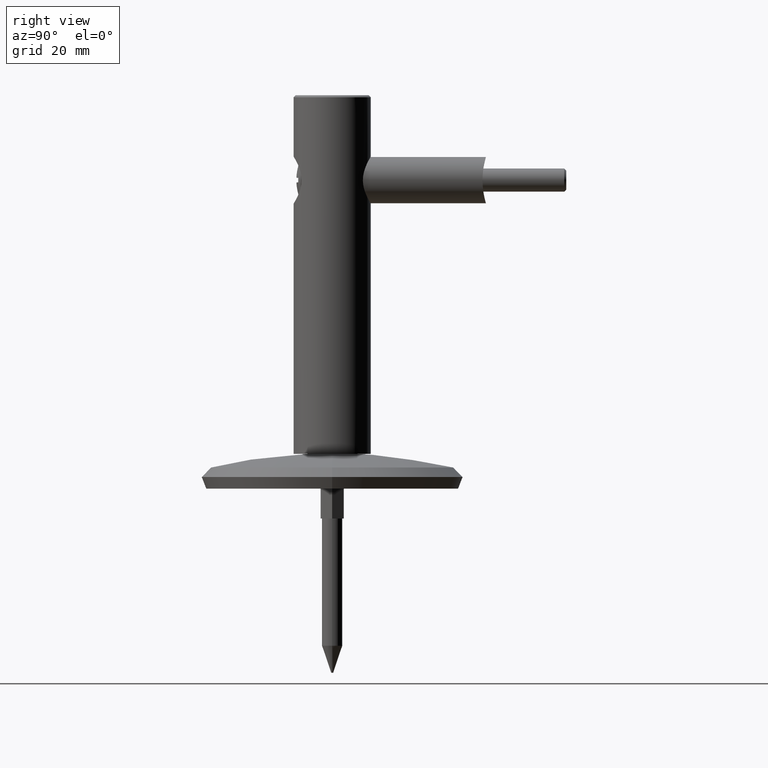
[diagram: clean part render]
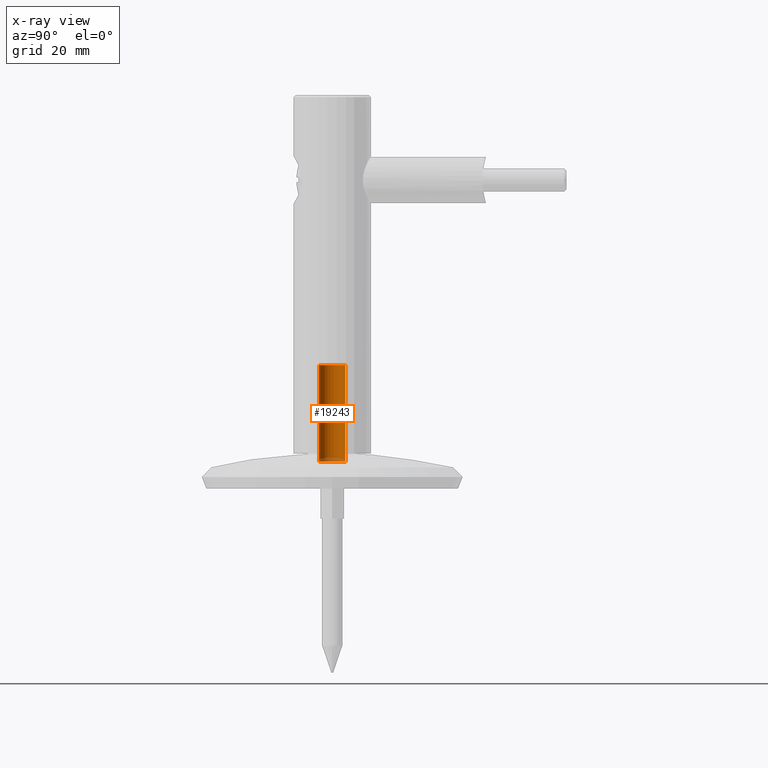
[diagram: x-ray — body ghosted, one internal face saturated and labeled with its STEP entity id]
A machine part, right view, then the same camera in x-ray: the body is ghosted and one INTERNAL B-rep face — a face not visible from any outside direction — is saturated and labeled: STEP entity #19243.
In plain terms, the highlighted cylindrical surface (edge-blend (fillet) strip) has radius 3.4 mm, axis along (-0, -0, -1).
Its self-contained STEP definition (entity closure, byte-faithful):
#2332 = EDGE_CURVE ( 'NONE', #19523, #19886, #24915, .T. ) ;
#3227 = AXIS2_PLACEMENT_3D ( 'NONE', #10931, #23021, #3333 ) ;
#3333 = DIRECTION ( 'NONE',  ( 0.000000000000000000, 1.000000000000000000, -9.130123557772669567E-18 ) ) ;
#3675 = ORIENTED_EDGE ( 'NONE', *, *, #31191, .T. ) ;
#4329 = CARTESIAN_POINT ( 'NONE',  ( 0.000000000000000000, 0.000000000000000000, 0.000000000000000000 ) ) ;
#7680 = VECTOR ( 'NONE', #30108, 1000.000000000000000 ) ;
#8773 = ORIENTED_EDGE ( 'NONE', *, *, #2332, .F. ) ;
#8938 = CARTESIAN_POINT ( 'NONE',  ( 4.163799117100999080E-16, -3.399999999999998135, 3.104242009642705681E-17 ) ) ;
#9826 = VERTEX_POINT ( 'NONE', #8938 ) ;
#10574 = CARTESIAN_POINT ( 'NONE',  ( 4.163799117100996615E-16, -3.399999999999996358, 3.104242009642704448E-17 ) ) ;
#10931 = CARTESIAN_POINT ( 'NONE',  ( 0.000000000000000000, 0.000000000000000000, 0.000000000000000000 ) ) ;
#11310 = CYLINDRICAL_SURFACE ( 'NONE', #11922, 3.399999999999996358 ) ;
#11513 = LINE ( 'NONE', #10574, #7680 ) ;
#11922 = AXIS2_PLACEMENT_3D ( 'NONE', #4329, #26073, #21459 ) ;
#13369 = EDGE_CURVE ( 'NONE', #14312, #19523, #21028, .T. ) ;
#14312 = VERTEX_POINT ( 'NONE', #18199 ) ;
#14519 = EDGE_LOOP ( 'NONE', ( #25226, #16409, #3675, #8773 ) ) ;
#16409 = ORIENTED_EDGE ( 'NONE', *, *, #29818, .T. ) ;
#17851 = FACE_OUTER_BOUND ( 'NONE', #14519, .T. ) ;
#18199 = CARTESIAN_POINT ( 'NONE',  ( 4.163799117100994150E-16, -3.399999999999993694, 25.00000000000000000 ) ) ;
#18943 = CARTESIAN_POINT ( 'NONE',  ( 0.000000000000000000, 2.282530889443170473E-16, 25.00000000000000000 ) ) ;
#19243 = ADVANCED_FACE ( 'NONE', ( #17851 ), #11310, .F. ) ;
#19523 = VERTEX_POINT ( 'NONE', #28052 ) ;
#19886 = VERTEX_POINT ( 'NONE', #22602 ) ;
#21028 = CIRCLE ( 'NONE', #29479, 3.399999999999994138 ) ;
#21263 = CARTESIAN_POINT ( 'NONE',  ( 0.000000000000000000, 3.399999999999996358, -3.104242009642704448E-17 ) ) ;
#21459 = DIRECTION ( 'NONE',  ( 0.000000000000000000, 1.000000000000000000, -9.130123557772669567E-18 ) ) ;
#22602 = CARTESIAN_POINT ( 'NONE',  ( 0.000000000000000000, 3.399999999999998579, -3.104242009642706297E-17 ) ) ;
#23021 = DIRECTION ( 'NONE',  ( -0.000000000000000000, -9.130123557772669567E-18, -1.000000000000000000 ) ) ;
#24086 = CIRCLE ( 'NONE', #3227, 3.399999999999998579 ) ;
#24915 = LINE ( 'NONE', #21263, #25319 ) ;
#25226 = ORIENTED_EDGE ( 'NONE', *, *, #13369, .F. ) ;
#25319 = VECTOR ( 'NONE', #30981, 1000.000000000000000 ) ;
#26073 = DIRECTION ( 'NONE',  ( -0.000000000000000000, -9.130123557772669567E-18, -1.000000000000000000 ) ) ;
#28052 = CARTESIAN_POINT ( 'NONE',  ( 0.000000000000000000, 3.399999999999994582, 25.00000000000000000 ) ) ;
#28555 = DIRECTION ( 'NONE',  ( 0.000000000000000000, 1.000000000000000000, 0.000000000000000000 ) ) ;
#29479 = AXIS2_PLACEMENT_3D ( 'NONE', #18943, #30891, #28555 ) ;
#29818 = EDGE_CURVE ( 'NONE', #14312, #9826, #11513, .T. ) ;
#30108 = DIRECTION ( 'NONE',  ( -0.000000000000000000, -9.130123557772669567E-18, -1.000000000000000000 ) ) ;
#30891 = DIRECTION ( 'NONE',  ( -0.000000000000000000, -9.130123557772669567E-18, -1.000000000000000000 ) ) ;
#30981 = DIRECTION ( 'NONE',  ( -0.000000000000000000, -9.130123557772669567E-18, -1.000000000000000000 ) ) ;
#31191 = EDGE_CURVE ( 'NONE', #9826, #19886, #24086, .T. ) ;